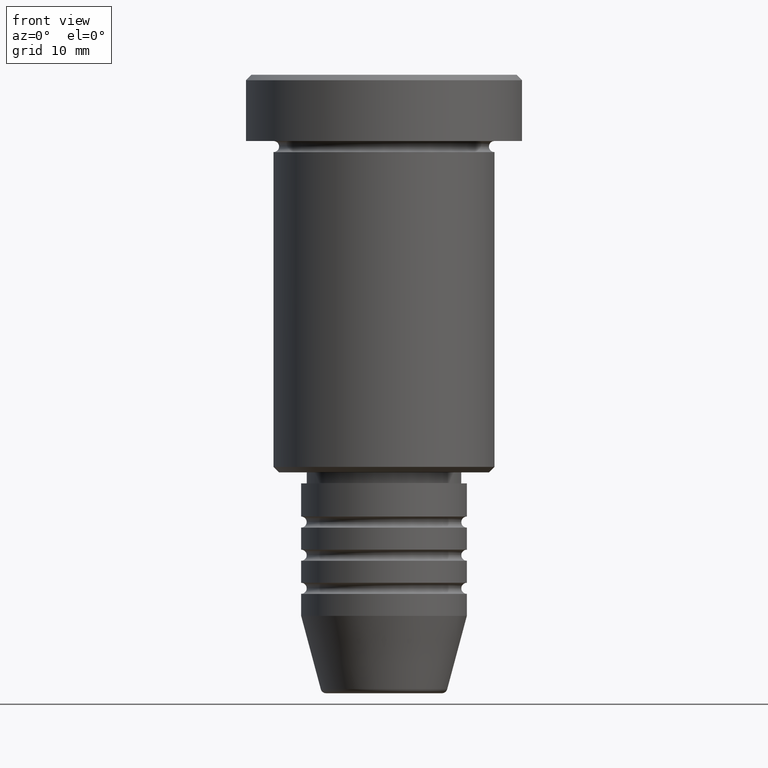
[diagram: clean part render]
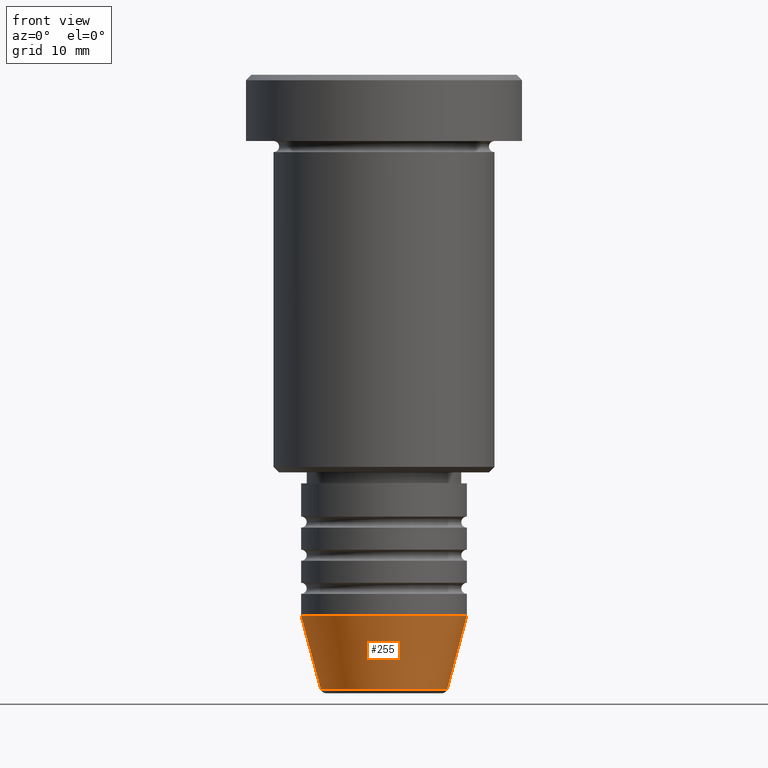
[diagram: same view with one face highlighted and labeled with its STEP entity id]
A machine part, front view. The second image highlights one B-rep face of the part: STEP entity #255.
In plain terms, the highlighted conical surface has half-angle 15 deg.
Its self-contained STEP definition (entity closure, byte-faithful):
#9 = CARTESIAN_POINT ( 'NONE',  ( 0.000000000000000000, 0.000000000000000000, -55.62940952255124927 ) ) ;
#50 = ORIENTED_EDGE ( 'NONE', *, *, #175, .T. ) ;
#94 = FACE_OUTER_BOUND ( 'NONE', #819, .T. ) ;
#102 = CARTESIAN_POINT ( 'NONE',  ( 5.723655072137192157, 0.000000000000000000, -55.62940952255124927 ) ) ;
#112 = DIRECTION ( 'NONE',  ( -0.000000000000000000, -0.000000000000000000, 1.000000000000000000 ) ) ;
#127 = CARTESIAN_POINT ( 'NONE',  ( -5.723655072137192157, 8.097153428560737887E-16, -55.62940952255124927 ) ) ;
#129 = VECTOR ( 'NONE', #1112, 1000.000000000000000 ) ;
#168 = VERTEX_POINT ( 'NONE', #102 ) ;
#175 = EDGE_CURVE ( 'NONE', #168, #484, #929, .T. ) ;
#203 = CARTESIAN_POINT ( 'NONE',  ( 0.000000000000000000, 0.000000000000000000, -48.99999999999999289 ) ) ;
#246 = DIRECTION ( 'NONE',  ( 1.000000000000000000, 0.000000000000000000, 0.000000000000000000 ) ) ;
#255 = ADVANCED_FACE ( 'NONE', ( #94 ), #667, .T. ) ;
#303 = ORIENTED_EDGE ( 'NONE', *, *, #304, .T. ) ;
#304 = EDGE_CURVE ( 'NONE', #750, #168, #928, .T. ) ;
#484 = VERTEX_POINT ( 'NONE', #524 ) ;
#524 = CARTESIAN_POINT ( 'NONE',  ( 7.500000000000000000, 0.000000000000000000, -48.99999999999999289 ) ) ;
#545 = CARTESIAN_POINT ( 'NONE',  ( -7.500000000000000000, 9.184850993605147944E-16, -48.99999999999999289 ) ) ;
#560 = DIRECTION ( 'NONE',  ( -0.000000000000000000, -0.000000000000000000, 1.000000000000000000 ) ) ;
#661 = LINE ( 'NONE', #1021, #880 ) ;
#665 = ORIENTED_EDGE ( 'NONE', *, *, #910, .F. ) ;
#667 = CONICAL_SURFACE ( 'NONE', #724, 7.500000000000000000, 0.2617993877991500740 ) ;
#724 = AXIS2_PLACEMENT_3D ( 'NONE', #203, #560, #830 ) ;
#735 = CARTESIAN_POINT ( 'NONE',  ( 7.500000000000000000, 0.000000000000000000, -48.99999999999999289 ) ) ;
#750 = VERTEX_POINT ( 'NONE', #127 ) ;
#819 = EDGE_LOOP ( 'NONE', ( #1135, #303, #50, #665 ) ) ;
#830 = DIRECTION ( 'NONE',  ( 1.000000000000000000, 0.000000000000000000, 0.000000000000000000 ) ) ;
#843 = DIRECTION ( 'NONE',  ( 1.000000000000000000, 0.000000000000000000, 0.000000000000000000 ) ) ;
#878 = AXIS2_PLACEMENT_3D ( 'NONE', #1075, #1059, #246 ) ;
#880 = VECTOR ( 'NONE', #925, 1000.000000000000000 ) ;
#910 = EDGE_CURVE ( 'NONE', #990, #484, #955, .T. ) ;
#925 = DIRECTION ( 'NONE',  ( -0.2588190451025213501, 3.169619151431772337E-17, 0.9659258262890680902 ) ) ;
#928 = CIRCLE ( 'NONE', #989, 5.723655072137192157 ) ;
#929 = LINE ( 'NONE', #735, #129 ) ;
#955 = CIRCLE ( 'NONE', #878, 7.500000000000000000 ) ;
#989 = AXIS2_PLACEMENT_3D ( 'NONE', #9, #112, #843 ) ;
#990 = VERTEX_POINT ( 'NONE', #545 ) ;
#1021 = CARTESIAN_POINT ( 'NONE',  ( -7.500000000000000000, 9.184850993605147944E-16, -48.99999999999999289 ) ) ;
#1059 = DIRECTION ( 'NONE',  ( -0.000000000000000000, -0.000000000000000000, 1.000000000000000000 ) ) ;
#1075 = CARTESIAN_POINT ( 'NONE',  ( 0.000000000000000000, 0.000000000000000000, -48.99999999999999289 ) ) ;
#1106 = EDGE_CURVE ( 'NONE', #750, #990, #661, .T. ) ;
#1112 = DIRECTION ( 'NONE',  ( 0.2588190451025213501, 0.000000000000000000, 0.9659258262890680902 ) ) ;
#1135 = ORIENTED_EDGE ( 'NONE', *, *, #1106, .F. ) ;